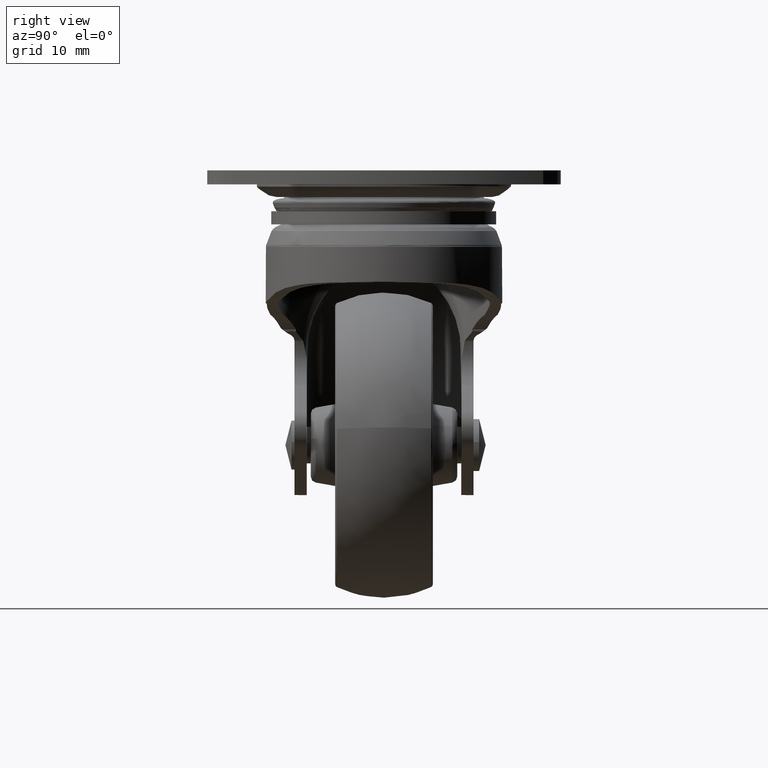
[diagram: clean part render]
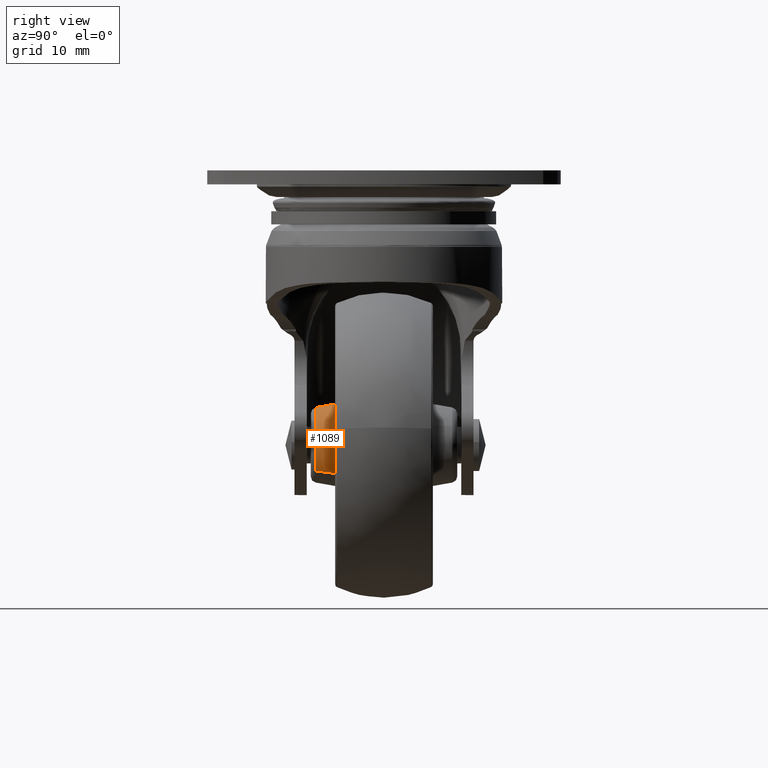
[diagram: same view with one face highlighted and labeled with its STEP entity id]
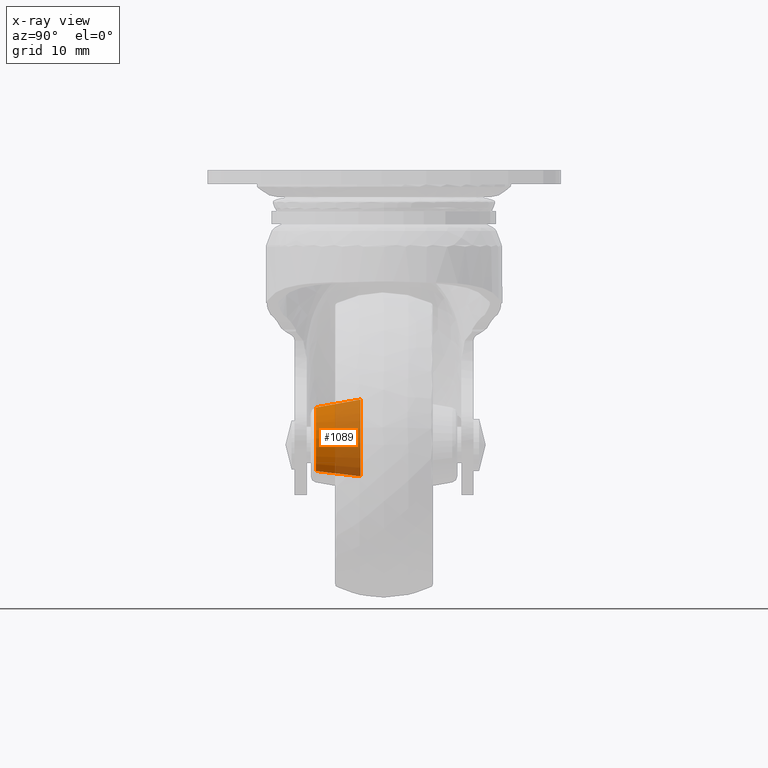
[diagram: x-ray of the same camera — body ghosted, the highlighted face saturated]
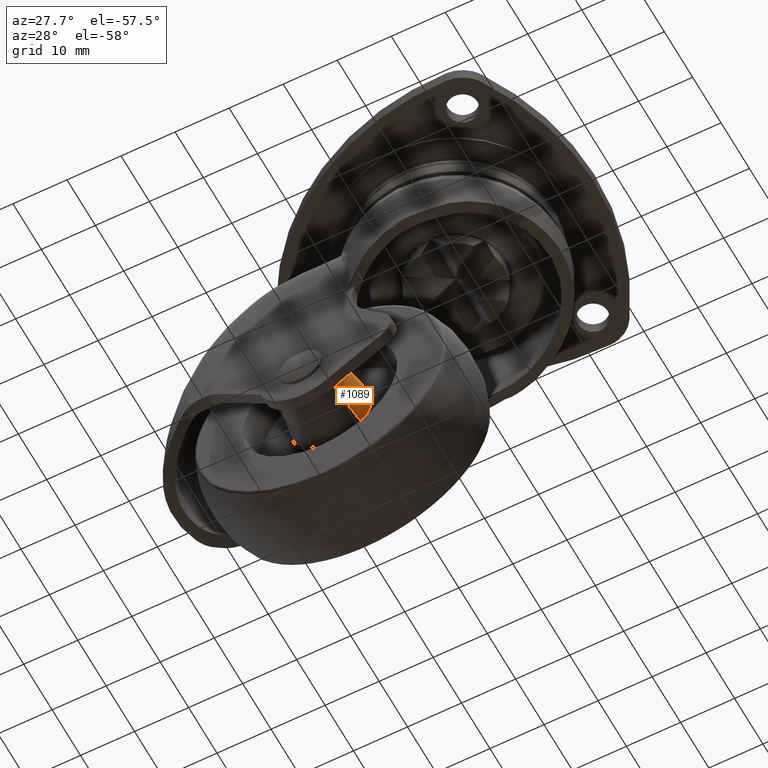
[diagram: same view with one face highlighted and labeled with its STEP entity id]
A machine part, right view. The second image highlights one B-rep face of the part: STEP entity #1089.
The next image is the same camera in x-ray: the body ghosted, the highlighted face saturated — about 60% of this face is hidden behind the body in this view.
A second angle (auxiliary view) of the same face is appended — the face is thin or edge-on in the first view.
In plain terms, the highlighted face is a freeform B-spline surface patch.
Its self-contained STEP definition (entity closure, byte-faithful):
#864=CARTESIAN_POINT('',(5.372704892678971,-3.826351753015500,-50.148399936148436));
#865=VERTEX_POINT('',#864);
#879=CARTESIAN_POINT('',(4.437311146724518,-11.173647999999980,-49.252057926277537));
#880=VERTEX_POINT('',#879);
#881=CARTESIAN_POINT('',(4.437311146724518,-11.173647999999980,-49.252057926277537));
#882=CARTESIAN_POINT('',(5.372704892678971,-3.826351753015500,-50.148399936148436));
#883=QUASI_UNIFORM_CURVE('',1,(#881,#882),.UNSPECIFIED.,.F.,.U.);
#884=EDGE_CURVE('',#880,#865,#883,.T.);
#916=CARTESIAN_POINT('',(-4.673233026034290,-11.173647999999741,-41.008681933790768));
#917=VERTEX_POINT('',#916);
#933=CARTESIAN_POINT('',(-5.658359559063028,-3.826351753015256,-40.167304389193283));
#934=VERTEX_POINT('',#933);
#935=CARTESIAN_POINT('',(-4.673233026034290,-11.173647999999741,-41.008681933790768));
#936=CARTESIAN_POINT('',(-5.658359559063028,-3.826351753015256,-40.167304389193283));
#937=QUASI_UNIFORM_CURVE('',1,(#935,#936),.UNSPECIFIED.,.F.,.U.);
#938=EDGE_CURVE('',#917,#934,#937,.T.);
#973=CARTESIAN_POINT('',(-4.648604862702965,-11.357330406228540,-41.029716372413851));
#974=CARTESIAN_POINT('',(-0.678321235116814,-11.357330406228545,-36.381111509710884));
#975=CARTESIAN_POINT('',(3.970283627586151,-11.357330406228540,-40.351395137297033));
#976=CARTESIAN_POINT('',(8.618888490289116,-11.357330406228545,-44.321678764883174));
#977=CARTESIAN_POINT('',(4.648604862702965,-11.357330406228540,-48.970283627586149));
#978=CARTESIAN_POINT('',(4.534977051030663,-11.357330406228547,-49.103324701580974));
#979=CARTESIAN_POINT('',(4.413926303069138,-11.357330406228549,-49.229649376023815));
#980=CARTESIAN_POINT('',(-5.683603426770185,-3.638077284474105,-40.145744089361607));
#981=CARTESIAN_POINT('',(-0.829347516131799,-3.638077284474105,-34.462140662591430));
#982=CARTESIAN_POINT('',(4.854255910638386,-3.638077284474105,-39.316396573229817));
#983=CARTESIAN_POINT('',(10.537859337408571,-3.638077284474105,-44.170652483868203));
#984=CARTESIAN_POINT('',(5.683603426770185,-3.638077284474105,-49.854255910638393));
#985=CARTESIAN_POINT('',(5.544676708137110,-3.638077284474105,-50.016918198871366));
#986=CARTESIAN_POINT('',(5.396674357701333,-3.638077284474106,-50.171368700420665));
#994=(BOUNDED_SURFACE()B_SPLINE_SURFACE(2,1,((#973,#980),(#974,#981),(#975,#982),(#976,#983),(#977,#984),(#978,#985),(#979,#986)),.UNSPECIFIED.,.F.,.F.,.U.)B_SPLINE_SURFACE_WITH_KNOTS((3,2,2,3),(2,2),(0.0,12.384046043934999,24.768092087869992,25.263453929627389),(0.0,7.838335140994006),.UNSPECIFIED.)GEOMETRIC_REPRESENTATION_ITEM()RATIONAL_B_SPLINE_SURFACE(((1.0,1.0),(0.707106781186548,0.707106781186548),(1.0,1.0),(0.707106781186548,0.707106781186548),(1.0,1.0),(0.988284271247462,0.988284271247462),(0.977505800795127,0.977505800795127)))REPRESENTATION_ITEM('')SURFACE());
#995=CARTESIAN_POINT('',(7.342162077958011,-3.826351750865984,-43.789778618191761));
#996=VERTEX_POINT('',#995);
#997=CARTESIAN_POINT('',(5.372704892678972,-3.826351753015500,-50.148399936148444));
#998=CARTESIAN_POINT('',(7.441235096833711,-3.826351753015525,-47.989748221762021));
#999=CARTESIAN_POINT('',(7.441235096833710,-3.826351753015525,-45.0));
#1000=CARTESIAN_POINT('',(7.441235096833710,-3.826351753015525,-44.390834074542504));
#1001=CARTESIAN_POINT('',(7.342162077958011,-3.826351750865985,-43.789778618191761));
#1009=(BOUNDED_CURVE()B_SPLINE_CURVE(2,(#997,#998,#999,#1000,#1001),.UNSPECIFIED.,.F.,.U.)B_SPLINE_CURVE_WITH_KNOTS((3,2,3),(0.628216502435667,0.750000000000000,0.777993891202728),.UNSPECIFIED.)CURVE()GEOMETRIC_REPRESENTATION_ITEM()RATIONAL_B_SPLINE_CURVE((0.853650358286521,0.857321757600089,1.0,0.967203116394078,0.941751131919777))REPRESENTATION_ITEM(''));
#1010=EDGE_CURVE('',#865,#996,#1009,.T.);
#1011=ORIENTED_EDGE('',*,*,#1010,.T.);
#1012=CARTESIAN_POINT('',(0.0,-3.826351753015525,-37.558764903166292));
#1013=VERTEX_POINT('',#1012);
#1014=CARTESIAN_POINT('',(7.342162077958012,-3.826351750865983,-43.789778618191761));
#1015=CARTESIAN_POINT('',(6.315093218495466,-3.826351753015524,-37.558764903166292));
#1016=CARTESIAN_POINT('',(0.0,-3.826351753015525,-37.558764903166292));
#1024=(BOUNDED_CURVE()B_SPLINE_CURVE(2,(#1014,#1015,#1016),.UNSPECIFIED.,.F.,.U.)B_SPLINE_CURVE_WITH_KNOTS((3,3),(0.777993891202728,1.0),.UNSPECIFIED.)CURVE()GEOMETRIC_REPRESENTATION_ITEM()RATIONAL_B_SPLINE_CURVE((0.941751131919777,0.739903664792470,1.0))REPRESENTATION_ITEM(''));
#1025=EDGE_CURVE('',#996,#1013,#1024,.T.);
#1026=ORIENTED_EDGE('',*,*,#1025,.T.);
#1027=CARTESIAN_POINT('',(0.0,-3.826351753015525,-37.558764903166292));
#1028=CARTESIAN_POINT('',(-3.430456366775370,-3.826351753015525,-37.558764903166285));
#1029=CARTESIAN_POINT('',(-5.658359559063028,-3.826351753015256,-40.167304389193276));
#1037=(BOUNDED_CURVE()B_SPLINE_CURVE(2,(#1027,#1028,#1029),.UNSPECIFIED.,.F.,.U.)B_SPLINE_CURVE_WITH_KNOTS((3,3),(0.0,0.136856838650520),.UNSPECIFIED.)CURVE()GEOMETRIC_REPRESENTATION_ITEM()RATIONAL_B_SPLINE_CURVE((1.0,0.839662240044063,0.854871031639130))REPRESENTATION_ITEM(''));
#1038=EDGE_CURVE('',#1013,#934,#1037,.T.);
#1039=ORIENTED_EDGE('',*,*,#1038,.T.);
#1040=ORIENTED_EDGE('',*,*,#938,.F.);
#1041=CARTESIAN_POINT('',(0.0,-11.173648000000000,-38.854291999999901));
#1042=VERTEX_POINT('',#1041);
#1043=CARTESIAN_POINT('',(-4.673233026034290,-11.173647999999737,-41.008681933790768));
#1044=CARTESIAN_POINT('',(-2.833210194623435,-11.173648000000000,-38.854291999999916));
#1045=CARTESIAN_POINT('',(0.0,-11.173648000000000,-38.854291999999901));
#1053=(BOUNDED_CURVE()B_SPLINE_CURVE(2,(#1043,#1044,#1045),.UNSPECIFIED.,.F.,.U.)B_SPLINE_CURVE_WITH_KNOTS((3,3),(0.863143161349500,1.0),.UNSPECIFIED.)CURVE()GEOMETRIC_REPRESENTATION_ITEM()RATIONAL_B_SPLINE_CURVE((0.854871031639126,0.839662240044087,1.0))REPRESENTATION_ITEM(''));
#1054=EDGE_CURVE('',#917,#1042,#1053,.T.);
#1055=ORIENTED_EDGE('',*,*,#1054,.T.);
#1056=CARTESIAN_POINT('',(6.050844804125305,-11.173647982377290,-43.924359404603948));
#1057=VERTEX_POINT('',#1056);
#1058=CARTESIAN_POINT('',(0.0,-11.173648000000000,-38.854291999999901));
#1059=CARTESIAN_POINT('',(5.149554181954245,-11.173648000000002,-38.854291999999894));
#1060=CARTESIAN_POINT('',(6.050844804125305,-11.173647982377290,-43.924359404603948));
#1068=(BOUNDED_CURVE()B_SPLINE_CURVE(2,(#1058,#1059,#1060),.UNSPECIFIED.,.F.,.U.)B_SPLINE_CURVE_WITH_KNOTS((3,3),(0.0,0.219918253210509),.UNSPECIFIED.)CURVE()GEOMETRIC_REPRESENTATION_ITEM()RATIONAL_B_SPLINE_CURVE((1.0,0.742349739765369,0.937995440891002))REPRESENTATION_ITEM(''));
#1069=EDGE_CURVE('',#1042,#1057,#1068,.T.);
#1070=ORIENTED_EDGE('',*,*,#1069,.T.);
#1071=CARTESIAN_POINT('',(6.050844804125305,-11.173647982377291,-43.924359404603955));
#1072=CARTESIAN_POINT('',(6.145708000000099,-11.173648000000004,-44.457996601568425));
#1073=CARTESIAN_POINT('',(6.145708000000099,-11.173648000000000,-45.0));
#1074=CARTESIAN_POINT('',(6.145708000000099,-11.173648000000000,-47.469229815395224));
#1075=CARTESIAN_POINT('',(4.437311146724518,-11.173647999999984,-49.252057926277537));
#1083=(BOUNDED_CURVE()B_SPLINE_CURVE(2,(#1071,#1072,#1073,#1074,#1075),.UNSPECIFIED.,.F.,.U.)B_SPLINE_CURVE_WITH_KNOTS((3,2,3),(0.219918253210509,0.250000000000000,0.371783497564323),.UNSPECIFIED.)CURVE()GEOMETRIC_REPRESENTATION_ITEM()RATIONAL_B_SPLINE_CURVE((0.937995440891002,0.964757041421178,1.0,0.857321757600100,0.853650358286522))REPRESENTATION_ITEM(''));
#1084=EDGE_CURVE('',#1057,#880,#1083,.T.);
#1085=ORIENTED_EDGE('',*,*,#1084,.T.);
#1086=ORIENTED_EDGE('',*,*,#884,.T.);
#1087=EDGE_LOOP('',(#1011,#1026,#1039,#1040,#1055,#1070,#1085,#1086));
#1088=FACE_OUTER_BOUND('',#1087,.T.);
#1089=ADVANCED_FACE('',(#1088),#994,.T.);